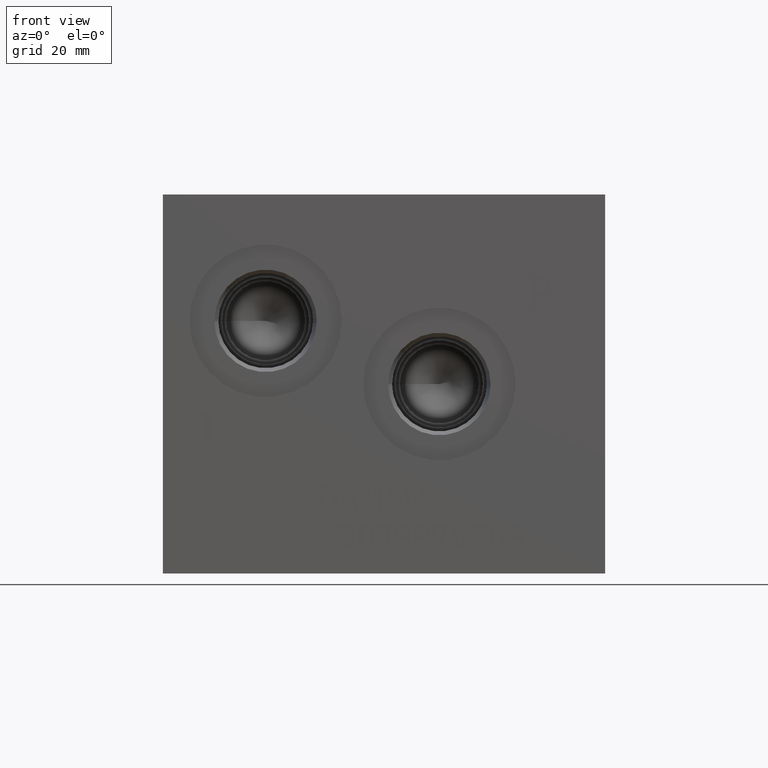
[diagram: clean part render]
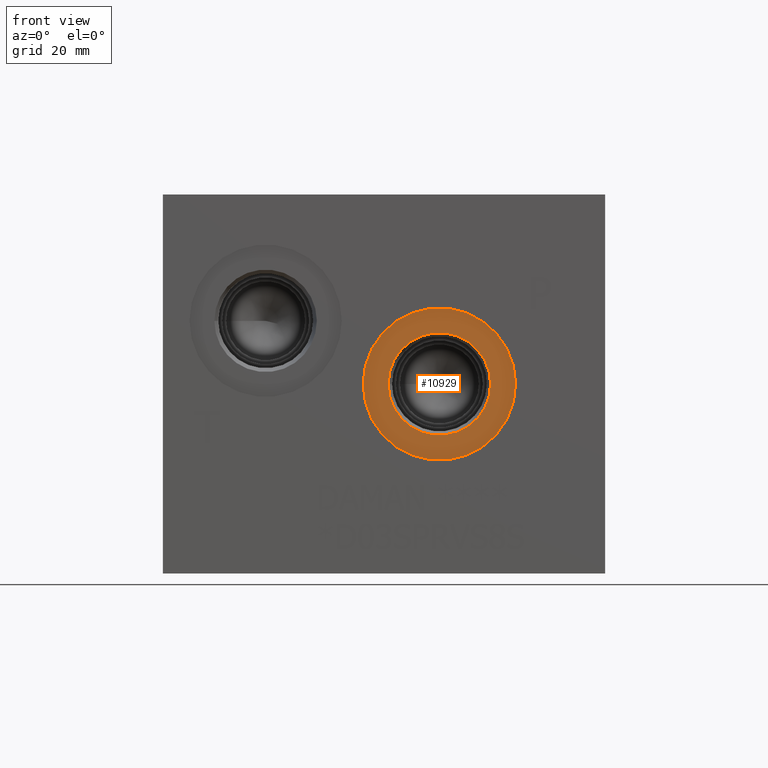
[diagram: same view with one face highlighted and labeled with its STEP entity id]
A machine part, front view. The second image highlights one B-rep face of the part: STEP entity #10929.
In plain terms, the highlighted planar face has unit normal (0, 1, 0).
Its self-contained STEP definition (entity closure, byte-faithful):
#218=CIRCLE('',#11462,15.3162);
#219=CIRCLE('',#11463,15.3162);
#220=CIRCLE('',#11465,10.2997);
#221=CIRCLE('',#11466,10.2997);
#361=FACE_BOUND('',#1831,.T.);
#682=PLANE('',#11464);
#1207=FACE_OUTER_BOUND('',#1830,.T.);
#1830=EDGE_LOOP('',(#9554,#9555));
#1831=EDGE_LOOP('',(#9556,#9557));
#5173=VERTEX_POINT('',#18725);
#5174=VERTEX_POINT('',#18727);
#5175=VERTEX_POINT('',#18731);
#5176=VERTEX_POINT('',#18732);
#6663=EDGE_CURVE('',#5173,#5174,#218,.T.);
#6664=EDGE_CURVE('',#5174,#5173,#219,.T.);
#6665=EDGE_CURVE('',#5175,#5176,#220,.T.);
#6666=EDGE_CURVE('',#5176,#5175,#221,.T.);
#9554=ORIENTED_EDGE('',*,*,#6664,.F.);
#9555=ORIENTED_EDGE('',*,*,#6663,.F.);
#9556=ORIENTED_EDGE('',*,*,#6665,.T.);
#9557=ORIENTED_EDGE('',*,*,#6666,.T.);
#10929=ADVANCED_FACE('',(#1207,#361),#682,.F.);
#11462=AXIS2_PLACEMENT_3D('',#18728,#13496,#13497);
#11463=AXIS2_PLACEMENT_3D('',#18729,#13498,#13499);
#11464=AXIS2_PLACEMENT_3D('',#18730,#13500,#13501);
#11465=AXIS2_PLACEMENT_3D('',#18733,#13502,#13503);
#11466=AXIS2_PLACEMENT_3D('',#18734,#13504,#13505);
#13496=DIRECTION('center_axis',(0.,1.,0.));
#13497=DIRECTION('ref_axis',(1.,0.,0.));
#13498=DIRECTION('center_axis',(0.,1.,0.));
#13499=DIRECTION('ref_axis',(1.,0.,0.));
#13500=DIRECTION('center_axis',(0.,1.,0.));
#13501=DIRECTION('ref_axis',(0.,0.,1.));
#13502=DIRECTION('center_axis',(0.,1.,0.));
#13503=DIRECTION('ref_axis',(1.,0.,0.));
#13504=DIRECTION('center_axis',(0.,1.,0.));
#13505=DIRECTION('ref_axis',(1.,0.,0.));
#18725=CARTESIAN_POINT('',(40.259,0.7874,38.1));
#18727=CARTESIAN_POINT('',(70.8914,0.7874,38.1));
#18728=CARTESIAN_POINT('Origin',(55.5752,0.7874,38.1));
#18729=CARTESIAN_POINT('Origin',(55.5752,0.7874,38.1));
#18730=CARTESIAN_POINT('Origin',(65.8749,0.7874,38.1));
#18731=CARTESIAN_POINT('',(65.8749,0.7874,38.1));
#18732=CARTESIAN_POINT('',(45.2755,0.787400000000001,38.1));
#18733=CARTESIAN_POINT('Origin',(55.5752,0.7874,38.1));
#18734=CARTESIAN_POINT('Origin',(55.5752,0.7874,38.1));